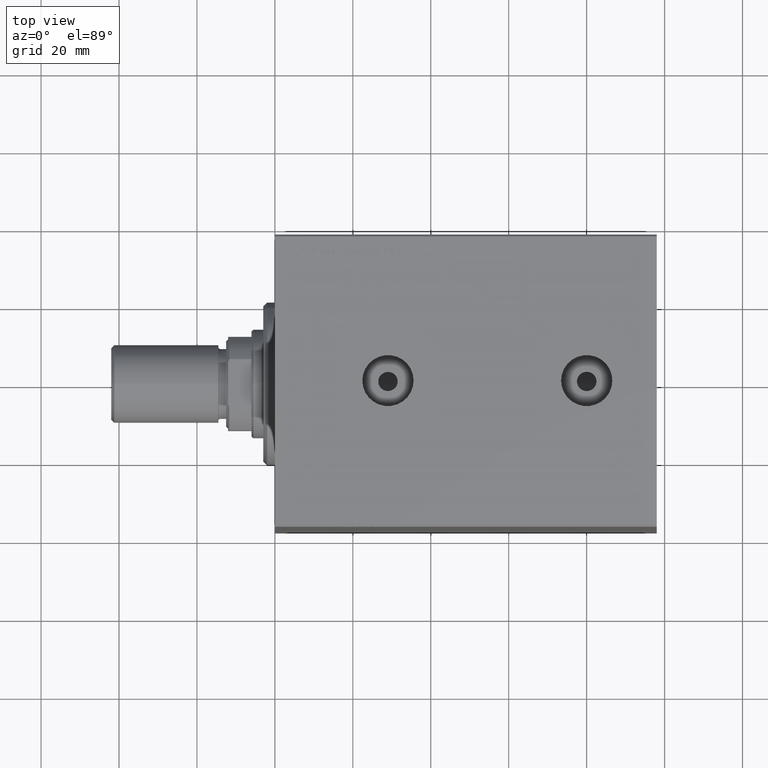
[diagram: clean part render]
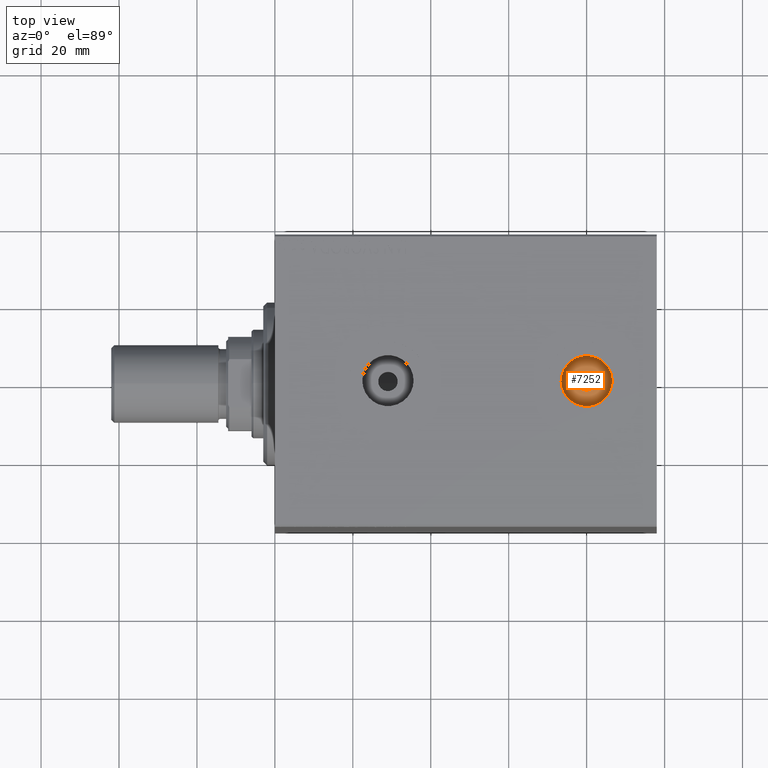
[diagram: same view with one face highlighted and labeled with its STEP entity id]
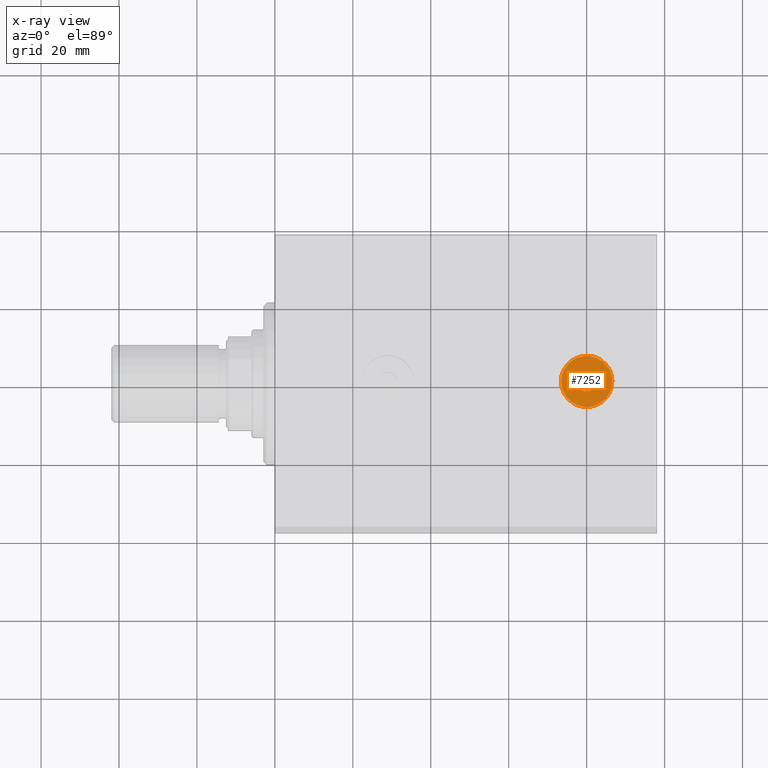
[diagram: x-ray of the same camera — body ghosted, the highlighted face saturated]
A machine part, top view. The second image highlights one B-rep face of the part: STEP entity #7252.
The next image is the same camera in x-ray: the body ghosted, the highlighted face saturated — about 0% of this face is hidden behind the body in this view.
In plain terms, the highlighted planar face has unit normal (0, 0, 1).
Its self-contained STEP definition (entity closure, byte-faithful):
#44 = CIRCLE ( 'NONE', #14409, 6.580000000000002736 ) ;
#827 = DIRECTION ( 'NONE',  ( 0.000000000000000000, 0.000000000000000000, 1.000000000000000000 ) ) ;
#1501 = PLANE ( 'NONE',  #14769 ) ;
#1909 = CARTESIAN_POINT ( 'NONE',  ( 80.00000000000001421, -9.251858538542973800E-15, 36.74000000000000199 ) ) ;
#1984 = CARTESIAN_POINT ( 'NONE',  ( 80.00000000000001421, -9.251858538542973800E-15, 36.74000000000000199 ) ) ;
#5813 = DIRECTION ( 'NONE',  ( 1.000000000000000000, 0.000000000000000000, 0.000000000000000000 ) ) ;
#6428 = ORIENTED_EDGE ( 'NONE', *, *, #29260, .T. ) ;
#7252 = ADVANCED_FACE ( 'NONE', ( #11174, #7588 ), #1501, .T. ) ;
#7588 = FACE_OUTER_BOUND ( 'NONE', #8219, .T. ) ;
#8219 = EDGE_LOOP ( 'NONE', ( #6428, #18637 ) ) ;
#11174 = FACE_BOUND ( 'NONE', #38215, .T. ) ;
#12294 = AXIS2_PLACEMENT_3D ( 'NONE', #25730, #19203, #43321 ) ;
#14409 = AXIS2_PLACEMENT_3D ( 'NONE', #40374, #36774, #43964 ) ;
#14769 = AXIS2_PLACEMENT_3D ( 'NONE', #25586, #827, #24908 ) ;
#15649 = VERTEX_POINT ( 'NONE', #29263 ) ;
#18637 = ORIENTED_EDGE ( 'NONE', *, *, #33630, .T. ) ;
#18795 = CIRCLE ( 'NONE', #12294, 2.500000000000002220 ) ;
#19203 = DIRECTION ( 'NONE',  ( 0.000000000000000000, 0.000000000000000000, 1.000000000000000000 ) ) ;
#19384 = VERTEX_POINT ( 'NONE', #35021 ) ;
#21073 = CARTESIAN_POINT ( 'NONE',  ( 77.50000000000001421, -8.945696838756137507E-15, 36.74000000000000199 ) ) ;
#22610 = VERTEX_POINT ( 'NONE', #26112 ) ;
#23106 = VERTEX_POINT ( 'NONE', #21073 ) ;
#24908 = DIRECTION ( 'NONE',  ( 1.000000000000000000, 0.000000000000000000, -0.000000000000000000 ) ) ;
#25283 = ORIENTED_EDGE ( 'NONE', *, *, #35378, .F. ) ;
#25586 = CARTESIAN_POINT ( 'NONE',  ( 80.00000000000001421, -9.251858538542973800E-15, 36.74000000000000199 ) ) ;
#25730 = CARTESIAN_POINT ( 'NONE',  ( 80.00000000000001421, -9.251858538542973800E-15, 36.74000000000000199 ) ) ;
#26112 = CARTESIAN_POINT ( 'NONE',  ( 82.50000000000001421, -9.251858538542973800E-15, 36.74000000000000199 ) ) ;
#28136 = CIRCLE ( 'NONE', #37493, 2.500000000000002220 ) ;
#29260 = EDGE_CURVE ( 'NONE', #15649, #19384, #33729, .T. ) ;
#29263 = CARTESIAN_POINT ( 'NONE',  ( 86.58000000000001251, -9.251858538542973800E-15, 36.74000000000000199 ) ) ;
#29406 = AXIS2_PLACEMENT_3D ( 'NONE', #1909, #43148, #42697 ) ;
#33630 = EDGE_CURVE ( 'NONE', #19384, #15649, #44, .T. ) ;
#33729 = CIRCLE ( 'NONE', #29406, 6.580000000000002736 ) ;
#35021 = CARTESIAN_POINT ( 'NONE',  ( 73.42000000000001592, -8.446040944704014758E-15, 36.74000000000000199 ) ) ;
#35378 = EDGE_CURVE ( 'NONE', #23106, #22610, #18795, .T. ) ;
#35595 = EDGE_CURVE ( 'NONE', #22610, #23106, #28136, .T. ) ;
#36774 = DIRECTION ( 'NONE',  ( 0.000000000000000000, 0.000000000000000000, 1.000000000000000000 ) ) ;
#37493 = AXIS2_PLACEMENT_3D ( 'NONE', #1984, #39843, #5813 ) ;
#38215 = EDGE_LOOP ( 'NONE', ( #44226, #25283 ) ) ;
#39843 = DIRECTION ( 'NONE',  ( 0.000000000000000000, 0.000000000000000000, 1.000000000000000000 ) ) ;
#40374 = CARTESIAN_POINT ( 'NONE',  ( 80.00000000000001421, -9.251858538542973800E-15, 36.74000000000000199 ) ) ;
#42697 = DIRECTION ( 'NONE',  ( 1.000000000000000000, 0.000000000000000000, 0.000000000000000000 ) ) ;
#43148 = DIRECTION ( 'NONE',  ( 0.000000000000000000, 0.000000000000000000, 1.000000000000000000 ) ) ;
#43321 = DIRECTION ( 'NONE',  ( 1.000000000000000000, 0.000000000000000000, 0.000000000000000000 ) ) ;
#43964 = DIRECTION ( 'NONE',  ( 1.000000000000000000, 0.000000000000000000, 0.000000000000000000 ) ) ;
#44226 = ORIENTED_EDGE ( 'NONE', *, *, #35595, .F. ) ;